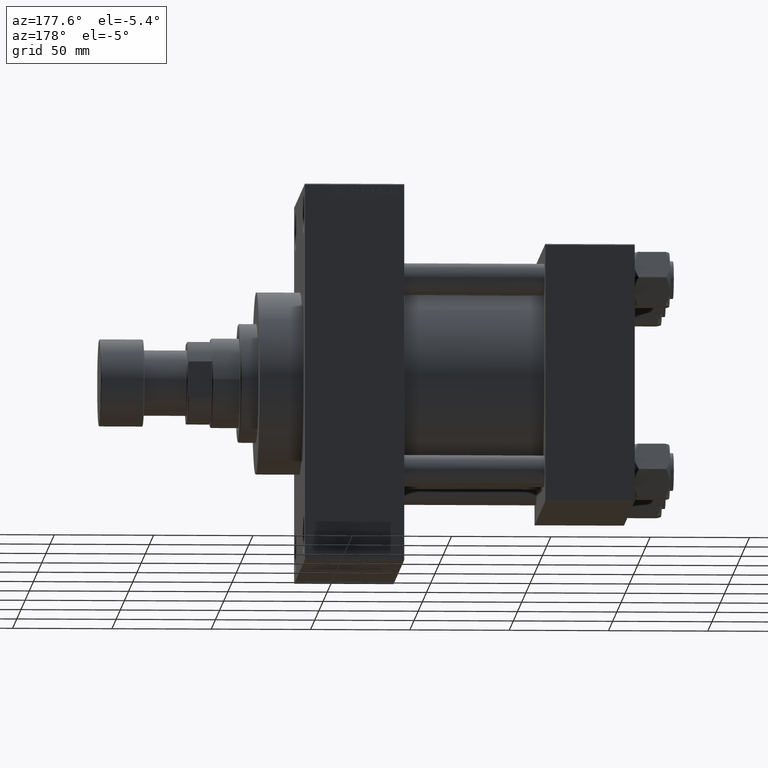
[diagram: clean part render]
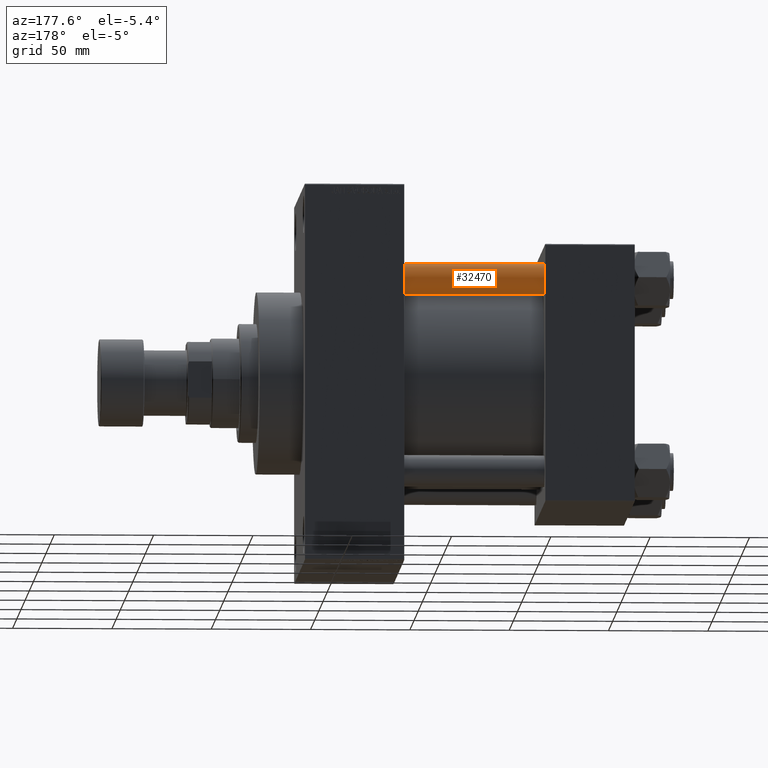
[diagram: same view with one face highlighted and labeled with its STEP entity id]
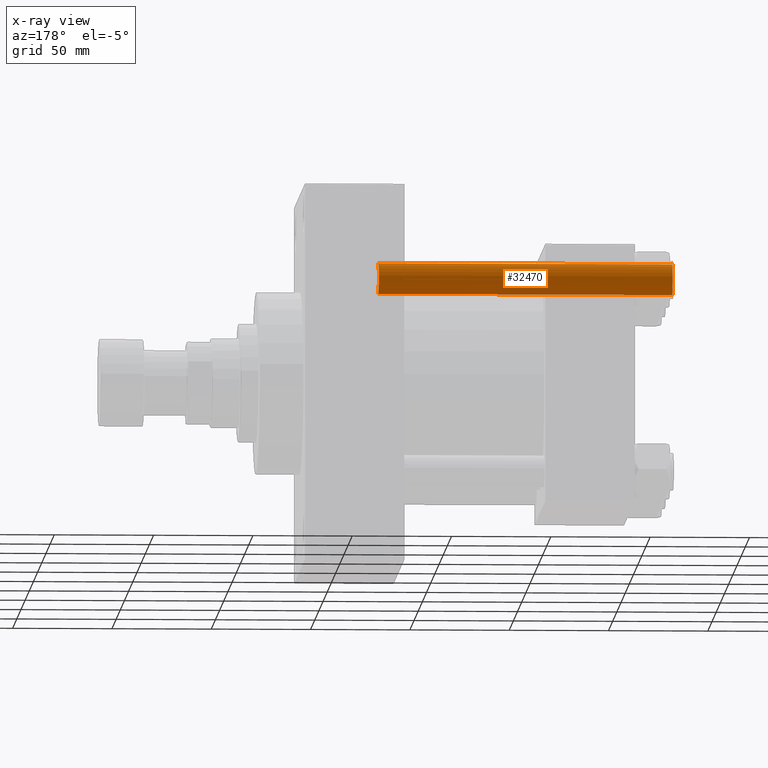
[diagram: x-ray of the same camera — body ghosted, the highlighted face saturated]
A machine part, auxiliary view. The second image highlights one B-rep face of the part: STEP entity #32470.
The next image is the same camera in x-ray: the body ghosted, the highlighted face saturated — about 0% of this face is hidden behind the body in this view.
In plain terms, the highlighted cylindrical surface (edge-blend (fillet) strip) has radius 8 mm, axis along (-1, -0, 0).
Its self-contained STEP definition (entity closure, byte-faithful):
#18 = DIRECTION ( 'NONE',  ( -0.000000000000000000, -0.000000000000000000, -1.000000000000000000 ) ) ;
#1655 = VECTOR ( 'NONE', #35136, 1000.000000000000000 ) ;
#1842 = CIRCLE ( 'NONE', #23629, 8.000000000000000000 ) ;
#3591 = AXIS2_PLACEMENT_3D ( 'NONE', #38065, #12539, #12783 ) ;
#4371 = ORIENTED_EDGE ( 'NONE', *, *, #20941, .F. ) ;
#5697 = LINE ( 'NONE', #20548, #1655 ) ;
#6105 = VERTEX_POINT ( 'NONE', #47931 ) ;
#7725 = CARTESIAN_POINT ( 'NONE',  ( 0.000000000000000000, 0.000000000000000000, 0.5000000000000281997 ) ) ;
#8941 = VECTOR ( 'NONE', #18, 1000.000000000000000 ) ;
#10272 = CARTESIAN_POINT ( 'NONE',  ( -8.000000000000000000, 0.000000000000000000, 148.5000000000000000 ) ) ;
#12539 = DIRECTION ( 'NONE',  ( -0.000000000000000000, -0.000000000000000000, -1.000000000000000000 ) ) ;
#12783 = DIRECTION ( 'NONE',  ( -1.000000000000000000, 0.000000000000000000, 0.000000000000000000 ) ) ;
#13761 = ORIENTED_EDGE ( 'NONE', *, *, #43667, .T. ) ;
#15306 = DIRECTION ( 'NONE',  ( 1.000000000000000000, 0.000000000000000000, 0.000000000000000000 ) ) ;
#16660 = FACE_OUTER_BOUND ( 'NONE', #42758, .T. ) ;
#18979 = ORIENTED_EDGE ( 'NONE', *, *, #25277, .T. ) ;
#20548 = CARTESIAN_POINT ( 'NONE',  ( -8.000000000000000000, 0.000000000000000000, 149.0000000000000000 ) ) ;
#20941 = EDGE_CURVE ( 'NONE', #38626, #6105, #5697, .T. ) ;
#22012 = AXIS2_PLACEMENT_3D ( 'NONE', #34024, #45679, #15306 ) ;
#22598 = VERTEX_POINT ( 'NONE', #25308 ) ;
#22887 = CARTESIAN_POINT ( 'NONE',  ( 8.000000000000000000, 9.797174393178825657E-16, 148.5000000000000000 ) ) ;
#23629 = AXIS2_PLACEMENT_3D ( 'NONE', #7725, #36423, #36663 ) ;
#25277 = EDGE_CURVE ( 'NONE', #38626, #46285, #32098, .T. ) ;
#25308 = CARTESIAN_POINT ( 'NONE',  ( 8.000000000000000000, 9.797174393178825657E-16, 0.5000000000000281997 ) ) ;
#32098 = CIRCLE ( 'NONE', #22012, 8.000000000000000000 ) ;
#32470 = ADVANCED_FACE ( 'NONE', ( #16660 ), #45845, .T. ) ;
#32788 = EDGE_CURVE ( 'NONE', #46285, #22598, #33592, .T. ) ;
#33346 = CARTESIAN_POINT ( 'NONE',  ( 8.000000000000000000, 9.797174393178825657E-16, 149.0000000000000000 ) ) ;
#33592 = LINE ( 'NONE', #33346, #8941 ) ;
#34024 = CARTESIAN_POINT ( 'NONE',  ( 0.000000000000000000, 0.000000000000000000, 148.5000000000000000 ) ) ;
#35136 = DIRECTION ( 'NONE',  ( -0.000000000000000000, -0.000000000000000000, -1.000000000000000000 ) ) ;
#36423 = DIRECTION ( 'NONE',  ( -0.000000000000000000, -0.000000000000000000, 1.000000000000000000 ) ) ;
#36663 = DIRECTION ( 'NONE',  ( 1.000000000000000000, 0.000000000000000000, 0.000000000000000000 ) ) ;
#37029 = ORIENTED_EDGE ( 'NONE', *, *, #32788, .T. ) ;
#38065 = CARTESIAN_POINT ( 'NONE',  ( 0.000000000000000000, 0.000000000000000000, 149.0000000000000000 ) ) ;
#38626 = VERTEX_POINT ( 'NONE', #10272 ) ;
#42758 = EDGE_LOOP ( 'NONE', ( #18979, #37029, #13761, #4371 ) ) ;
#43667 = EDGE_CURVE ( 'NONE', #22598, #6105, #1842, .T. ) ;
#45679 = DIRECTION ( 'NONE',  ( 0.000000000000000000, 0.000000000000000000, -1.000000000000000000 ) ) ;
#45845 = CYLINDRICAL_SURFACE ( 'NONE', #3591, 8.000000000000000000 ) ;
#46285 = VERTEX_POINT ( 'NONE', #22887 ) ;
#47931 = CARTESIAN_POINT ( 'NONE',  ( -8.000000000000000000, 0.000000000000000000, 0.5000000000000281997 ) ) ;